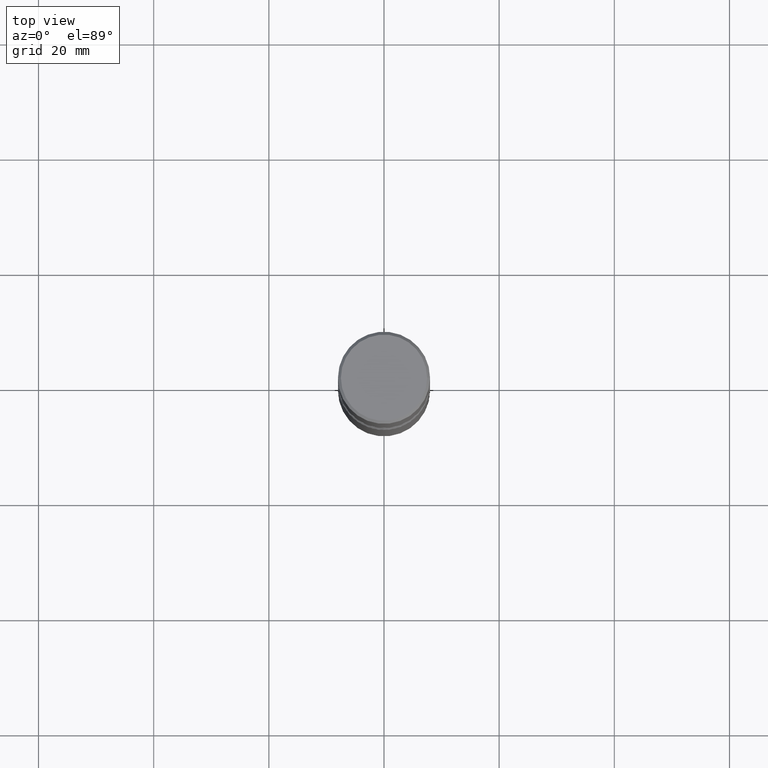
[diagram: clean part render]
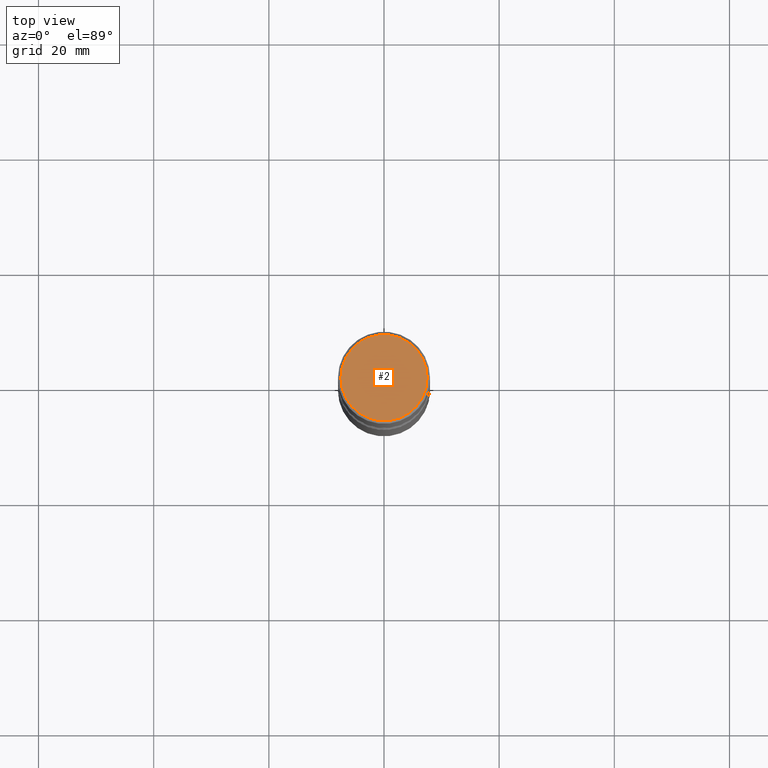
[diagram: same view with one face highlighted and labeled with its STEP entity id]
A machine part, top view. The second image highlights one B-rep face of the part: STEP entity #2.
In plain terms, the highlighted planar face has unit normal (0, -0, -1).
Its self-contained STEP definition (entity closure, byte-faithful):
#2 = ADVANCED_FACE ( 'NONE', ( #207 ), #354, .F. ) ;
#18 = ORIENTED_EDGE ( 'NONE', *, *, #126, .T. ) ;
#47 = CIRCLE ( 'NONE', #168, 0.2949499999999998234 ) ;
#51 = CIRCLE ( 'NONE', #428, 0.2949499999999998234 ) ;
#59 = ORIENTED_EDGE ( 'NONE', *, *, #124, .T. ) ;
#76 = DIRECTION ( 'NONE',  ( -2.445468806185136597E-29, 3.491481338843145583E-15, 1.000000000000000000 ) ) ;
#105 = CARTESIAN_POINT ( 'NONE',  ( 2.059624841783562880E-15, 0.2949499999999998234, -1.023409652156634547E-15 ) ) ;
#124 = EDGE_CURVE ( 'NONE', #328, #481, #47, .T. ) ;
#126 = EDGE_CURVE ( 'NONE', #481, #328, #51, .T. ) ;
#168 = AXIS2_PLACEMENT_3D ( 'NONE', #299, #76, #228 ) ;
#179 = CARTESIAN_POINT ( 'NONE',  ( 0.2949499999999998234, -2.127023677808859286E-15, 1.280553747031587399E-17 ) ) ;
#190 = CARTESIAN_POINT ( 'NONE',  ( -3.131554243005659264E-46, 4.471029511141341874E-32, 1.280553747030123384E-17 ) ) ;
#207 = FACE_OUTER_BOUND ( 'NONE', #300, .T. ) ;
#228 = DIRECTION ( 'NONE',  ( 1.000000000000000000, -6.982962677686267499E-15, 4.876053491004737710E-29 ) ) ;
#259 = CARTESIAN_POINT ( 'NONE',  ( -0.2949499999999998234, 2.094539655171994135E-15, 1.280553747028670770E-17 ) ) ;
#284 = AXIS2_PLACEMENT_3D ( 'NONE', #105, #377, #369 ) ;
#299 = CARTESIAN_POINT ( 'NONE',  ( -3.131554243005659264E-46, 4.471029511141341874E-32, 1.280553747030123384E-17 ) ) ;
#300 = EDGE_LOOP ( 'NONE', ( #18, #59 ) ) ;
#328 = VERTEX_POINT ( 'NONE', #179 ) ;
#339 = DIRECTION ( 'NONE',  ( -2.445468806185136597E-29, 3.491481338843145583E-15, 1.000000000000000000 ) ) ;
#354 = PLANE ( 'NONE',  #284 ) ;
#369 = DIRECTION ( 'NONE',  ( -1.000000000000000000, 6.982962677686265922E-15, -4.876176775795935793E-29 ) ) ;
#377 = DIRECTION ( 'NONE',  ( 2.438088387897960049E-29, -3.491481338843145188E-15, -1.000000000000000000 ) ) ;
#428 = AXIS2_PLACEMENT_3D ( 'NONE', #190, #339, #456 ) ;
#456 = DIRECTION ( 'NONE',  ( 1.000000000000000000, -6.982962677686267499E-15, 4.876053491004737710E-29 ) ) ;
#481 = VERTEX_POINT ( 'NONE', #259 ) ;